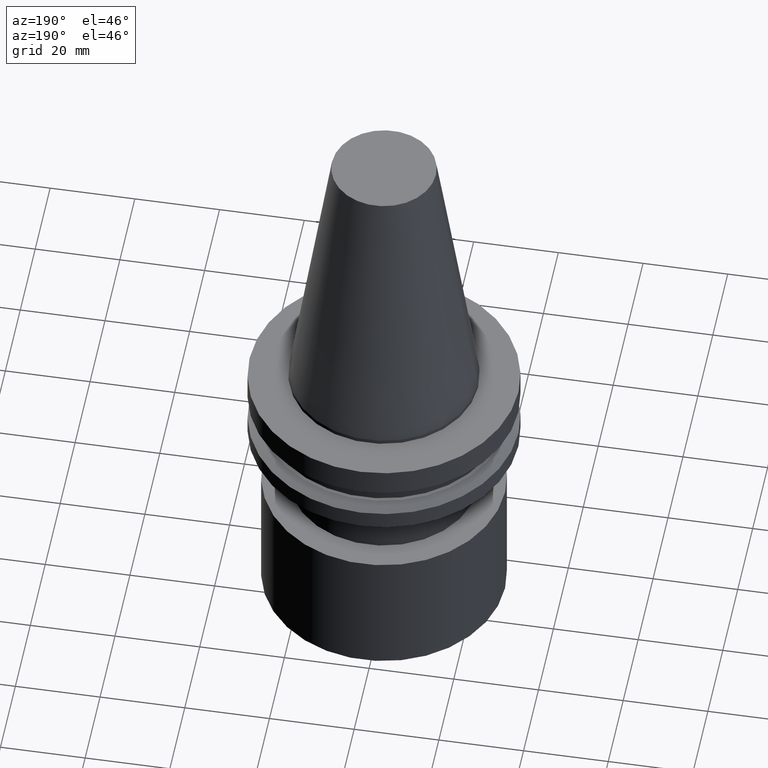
[diagram: clean part render]
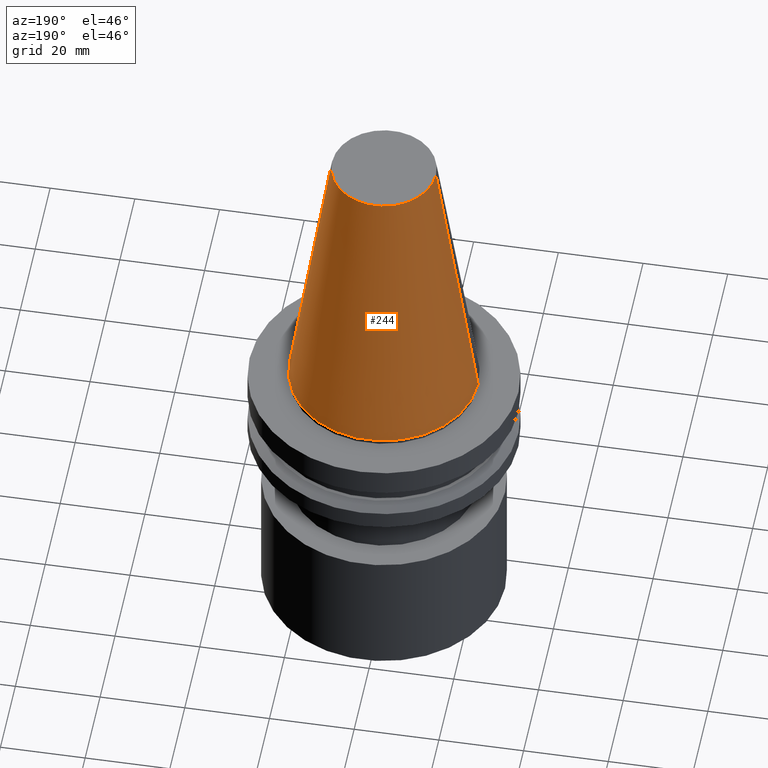
[diagram: same view with one face highlighted and labeled with its STEP entity id]
A machine part, auxiliary view. The second image highlights one B-rep face of the part: STEP entity #244.
In plain terms, the highlighted conical surface has half-angle 8.297 deg.
Its self-contained STEP definition (entity closure, byte-faithful):
#7 = DIRECTION ( 'NONE',  ( 1.000000000000000000, 0.000000000000000000, 0.000000000000000000 ) ) ;
#20 = EDGE_CURVE ( 'NONE', #368, #530, #157, .T. ) ;
#55 = ORIENTED_EDGE ( 'NONE', *, *, #631, .T. ) ;
#71 = CARTESIAN_POINT ( 'NONE',  ( 0.000000000000000000, 0.000000000000000000, 68.25000000000000000 ) ) ;
#98 = VERTEX_POINT ( 'NONE', #459 ) ;
#139 = CARTESIAN_POINT ( 'NONE',  ( -22.22500000000000142, 0.000000000000000000, 0.000000000000000000 ) ) ;
#150 = LINE ( 'NONE', #222, #187 ) ;
#154 = LINE ( 'NONE', #139, #492 ) ;
#157 = CIRCLE ( 'NONE', #173, 12.27178102086201150 ) ;
#173 = AXIS2_PLACEMENT_3D ( 'NONE', #71, #849, #7 ) ;
#187 = VECTOR ( 'NONE', #485, 999.9999999999998863 ) ;
#202 = AXIS2_PLACEMENT_3D ( 'NONE', #293, #620, #495 ) ;
#217 = DIRECTION ( 'NONE',  ( -0.000000000000000000, -0.000000000000000000, 1.000000000000000000 ) ) ;
#222 = CARTESIAN_POINT ( 'NONE',  ( 22.22500000000000142, 2.721777511104992849E-15, 0.000000000000000000 ) ) ;
#238 = CARTESIAN_POINT ( 'NONE',  ( 12.27178102086201150, 2.112318622904291439E-15, 68.25000000000000000 ) ) ;
#244 = ADVANCED_FACE ( 'NONE', ( #354 ), #576, .T. ) ;
#276 = DIRECTION ( 'NONE',  ( -0.1443082272672999711, 0.000000000000000000, -0.9895327864921755756 ) ) ;
#293 = CARTESIAN_POINT ( 'NONE',  ( 0.000000000000000000, 0.000000000000000000, 0.000000000000000000 ) ) ;
#315 = ORIENTED_EDGE ( 'NONE', *, *, #685, .T. ) ;
#354 = FACE_OUTER_BOUND ( 'NONE', #812, .T. ) ;
#368 = VERTEX_POINT ( 'NONE', #238 ) ;
#414 = CARTESIAN_POINT ( 'NONE',  ( 0.000000000000000000, 0.000000000000000000, 0.000000000000000000 ) ) ;
#449 = CARTESIAN_POINT ( 'NONE',  ( -12.27178102086201150, 0.000000000000000000, 68.25000000000000000 ) ) ;
#459 = CARTESIAN_POINT ( 'NONE',  ( -22.22500000000000142, 0.000000000000000000, 0.000000000000000000 ) ) ;
#485 = DIRECTION ( 'NONE',  ( 0.1443082272672999711, 1.767266086135276757E-17, -0.9895327864921755756 ) ) ;
#492 = VECTOR ( 'NONE', #276, 999.9999999999998863 ) ;
#495 = DIRECTION ( 'NONE',  ( -1.000000000000000000, 0.000000000000000000, 0.000000000000000000 ) ) ;
#525 = ORIENTED_EDGE ( 'NONE', *, *, #643, .F. ) ;
#530 = VERTEX_POINT ( 'NONE', #449 ) ;
#546 = DIRECTION ( 'NONE',  ( 1.000000000000000000, 0.000000000000000000, 0.000000000000000000 ) ) ;
#576 = CONICAL_SURFACE ( 'NONE', #202, 22.22500000000000142, 0.1448138465474119174 ) ;
#616 = CIRCLE ( 'NONE', #697, 22.22500000000000142 ) ;
#620 = DIRECTION ( 'NONE',  ( 0.000000000000000000, 0.000000000000000000, -1.000000000000000000 ) ) ;
#621 = VERTEX_POINT ( 'NONE', #814 ) ;
#631 = EDGE_CURVE ( 'NONE', #368, #621, #150, .T. ) ;
#643 = EDGE_CURVE ( 'NONE', #530, #98, #154, .T. ) ;
#685 = EDGE_CURVE ( 'NONE', #621, #98, #616, .T. ) ;
#697 = AXIS2_PLACEMENT_3D ( 'NONE', #414, #217, #546 ) ;
#801 = ORIENTED_EDGE ( 'NONE', *, *, #20, .F. ) ;
#812 = EDGE_LOOP ( 'NONE', ( #801, #55, #315, #525 ) ) ;
#814 = CARTESIAN_POINT ( 'NONE',  ( 22.22500000000000142, 2.721777511104992849E-15, 0.000000000000000000 ) ) ;
#849 = DIRECTION ( 'NONE',  ( -0.000000000000000000, -0.000000000000000000, 1.000000000000000000 ) ) ;